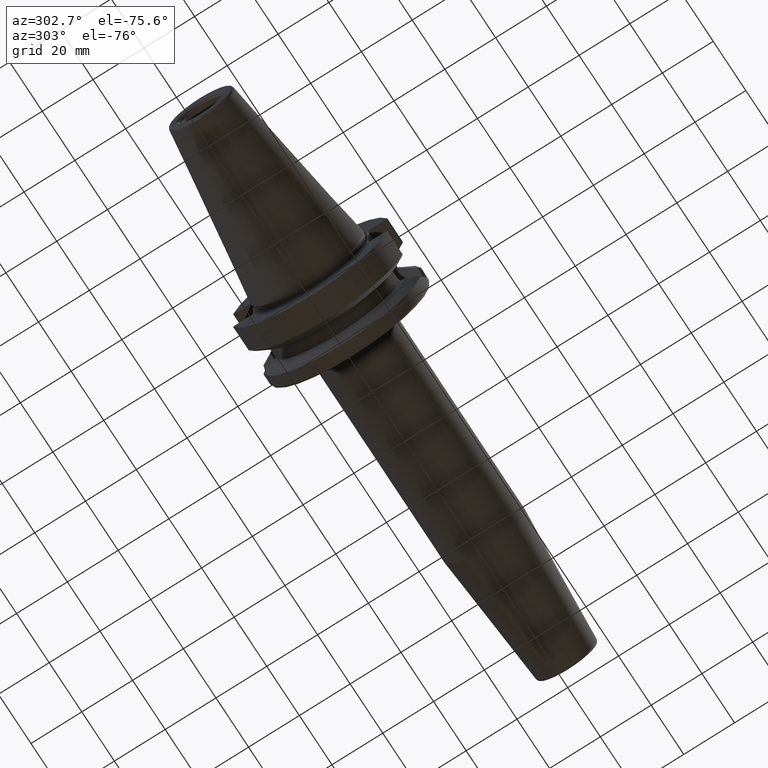
[diagram: clean part render]
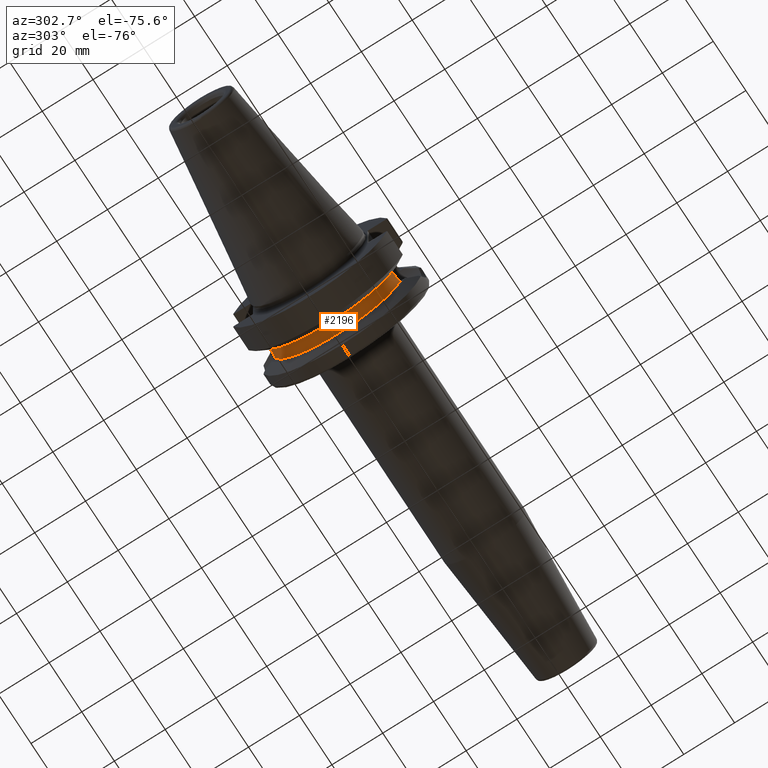
[diagram: same view with one face highlighted and labeled with its STEP entity id]
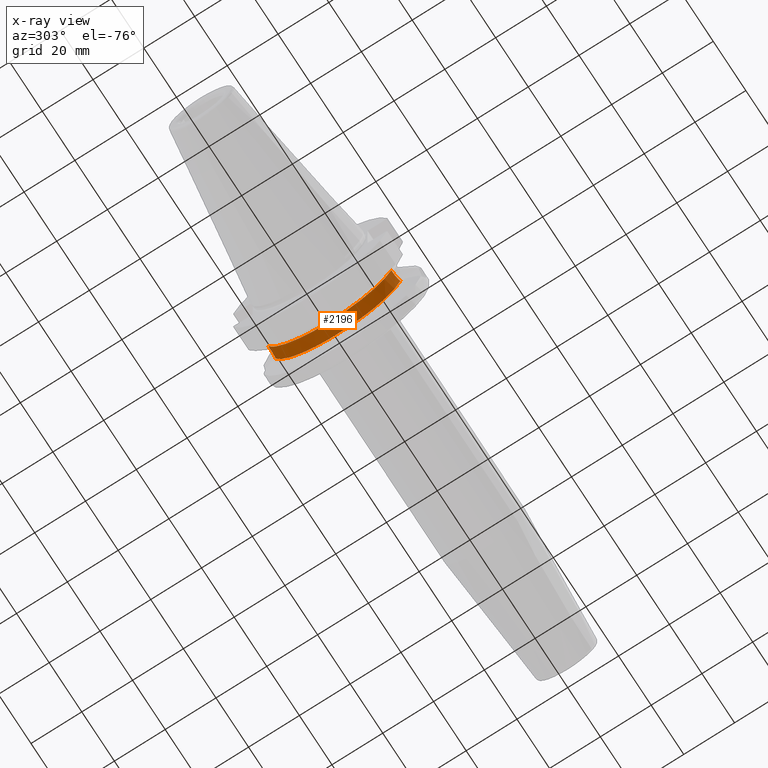
[diagram: x-ray of the same camera — body ghosted, the highlighted face saturated]
A machine part, auxiliary view. The second image highlights one B-rep face of the part: STEP entity #2196.
The next image is the same camera in x-ray: the body ghosted, the highlighted face saturated — about 0% of this face is hidden behind the body in this view.
In plain terms, the highlighted cylindrical surface (partial cylindrical patch) has radius 25.5 mm, axis along (-1, 0, 0).
Its self-contained STEP definition (entity closure, byte-faithful):
#606=CARTESIAN_POINT('',(1.91E1,-2.454933807662E1,-6.897825744392E0));
#607=CARTESIAN_POINT('',(1.867641699679E1,-2.447773250184E1,-7.152669738494E0));
#608=CARTESIAN_POINT('',(1.778882477777E1,-2.434922094846E1,-7.580139647955E0));
#609=CARTESIAN_POINT('',(1.638361911079E1,-2.422446852783E1,-7.965254988483E0));
#610=CARTESIAN_POINT('',(1.542599992151E1,-2.419602240039E1,-8.05E0));
#611=CARTESIAN_POINT('',(1.495E1,-2.419602240039E1,-8.05E0));
#642=DIRECTION('',(-1.E0,0.E0,0.E0));
#643=VECTOR('',#642,8.5E-1);
#644=CARTESIAN_POINT('',(1.495E1,-2.419602240039E1,-8.05E0));
#645=LINE('',#644,#643);
#646=CARTESIAN_POINT('',(1.91E1,0.E0,0.E0));
#647=DIRECTION('',(1.E0,0.E0,0.E0));
#648=DIRECTION('',(0.E0,-9.627191402595E-1,-2.705029703683E-1));
#649=AXIS2_PLACEMENT_3D('',#646,#647,#648);
#651=DIRECTION('',(-1.E0,0.E0,0.E0));
#652=VECTOR('',#651,8.5E-1);
#653=CARTESIAN_POINT('',(1.495E1,2.419602240039E1,-8.05E0));
#654=LINE('',#653,#652);
#655=CARTESIAN_POINT('',(1.41E1,0.E0,0.E0));
#656=DIRECTION('',(-1.E0,0.E0,0.E0));
#657=DIRECTION('',(0.E0,9.488636235446E-1,-3.156862745098E-1));
#658=AXIS2_PLACEMENT_3D('',#655,#656,#657);
#704=CARTESIAN_POINT('',(1.495E1,2.419602240039E1,-8.05E0));
#705=CARTESIAN_POINT('',(1.545003879218E1,2.419602240039E1,-8.05E0));
#706=CARTESIAN_POINT('',(1.643993891662E1,2.422710976470E1,-7.957502015576E0));
#707=CARTESIAN_POINT('',(1.786319727429E1,2.435842535411E1,-7.550793992203E0));
#708=CARTESIAN_POINT('',(1.870557473440E1,2.448266153947E1,-7.135127310553E0));
#709=CARTESIAN_POINT('',(1.91E1,2.454933807662E1,-6.897825744392E0));
#1043=CARTESIAN_POINT('',(1.41E1,2.419602240039E1,-8.05E0));
#1045=VERTEX_POINT('',#1043);
#1046=CARTESIAN_POINT('',(1.91E1,2.454933807662E1,-6.897825744392E0));
#1048=VERTEX_POINT('',#1046);
#1058=CARTESIAN_POINT('',(1.495E1,2.419602240039E1,-8.05E0));
#1059=VERTEX_POINT('',#1058);
#1180=CARTESIAN_POINT('',(1.41E1,-2.419602240039E1,-8.05E0));
#1181=VERTEX_POINT('',#1180);
#1187=CARTESIAN_POINT('',(1.91E1,-2.454933807662E1,-6.897825744392E0));
#1188=VERTEX_POINT('',#1187);
#1194=CARTESIAN_POINT('',(1.495E1,-2.419602240039E1,-8.05E0));
#1196=VERTEX_POINT('',#1194);
#2179=CARTESIAN_POINT('',(0.E0,0.E0,0.E0));
#2180=DIRECTION('',(-1.E0,0.E0,0.E0));
#2181=DIRECTION('',(0.E0,0.E0,-1.E0));
#2182=AXIS2_PLACEMENT_3D('',#2179,#2180,#2181);
#2183=CYLINDRICAL_SURFACE('',#2182,2.55E1);
#2184=ORIENTED_EDGE('',*,*,#2145,.F.);
#2185=ORIENTED_EDGE('',*,*,#2134,.F.);
#2187=ORIENTED_EDGE('',*,*,#2186,.T.);
#2189=ORIENTED_EDGE('',*,*,#2188,.F.);
#2191=ORIENTED_EDGE('',*,*,#2190,.T.);
#2193=ORIENTED_EDGE('',*,*,#2192,.T.);
#2194=EDGE_LOOP('',(#2184,#2185,#2187,#2189,#2191,#2193));
#2195=FACE_OUTER_BOUND('',#2194,.F.);
#2196=ADVANCED_FACE('',(#2195),#2183,.T.);
#612=B_SPLINE_CURVE_WITH_KNOTS('',3,(#606,#607,#608,#609,#610,#611),
.UNSPECIFIED.,.F.,.F.,(4,1,1,4),(0.E0,3.333333333333E-1,6.666666666667E-1,1.E0),
.UNSPECIFIED.);
#650=CIRCLE('',#649,2.55E1);
#659=CIRCLE('',#658,2.55E1);
#710=B_SPLINE_CURVE_WITH_KNOTS('',3,(#704,#705,#706,#707,#708,#709),
.UNSPECIFIED.,.F.,.F.,(4,1,1,4),(0.E0,3.333333333333E-1,6.666666666667E-1,1.E0),
.UNSPECIFIED.);
#2134=EDGE_CURVE('',#1188,#1196,#612,.T.);
#2145=EDGE_CURVE('',#1196,#1181,#645,.T.);
#2186=EDGE_CURVE('',#1188,#1048,#650,.T.);
#2188=EDGE_CURVE('',#1059,#1048,#710,.T.);
#2190=EDGE_CURVE('',#1059,#1045,#654,.T.);
#2192=EDGE_CURVE('',#1045,#1181,#659,.T.);